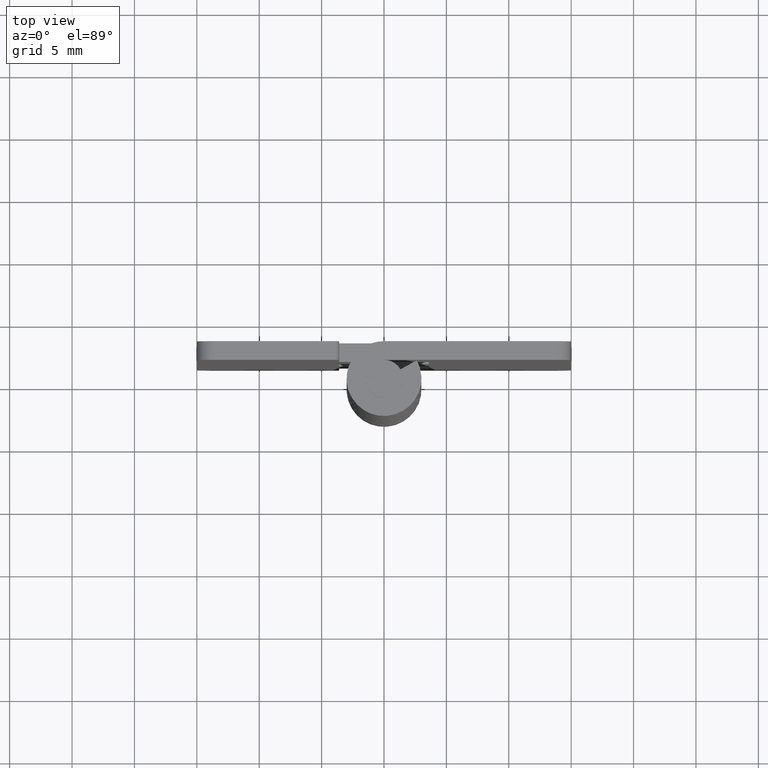
[diagram: clean part render]
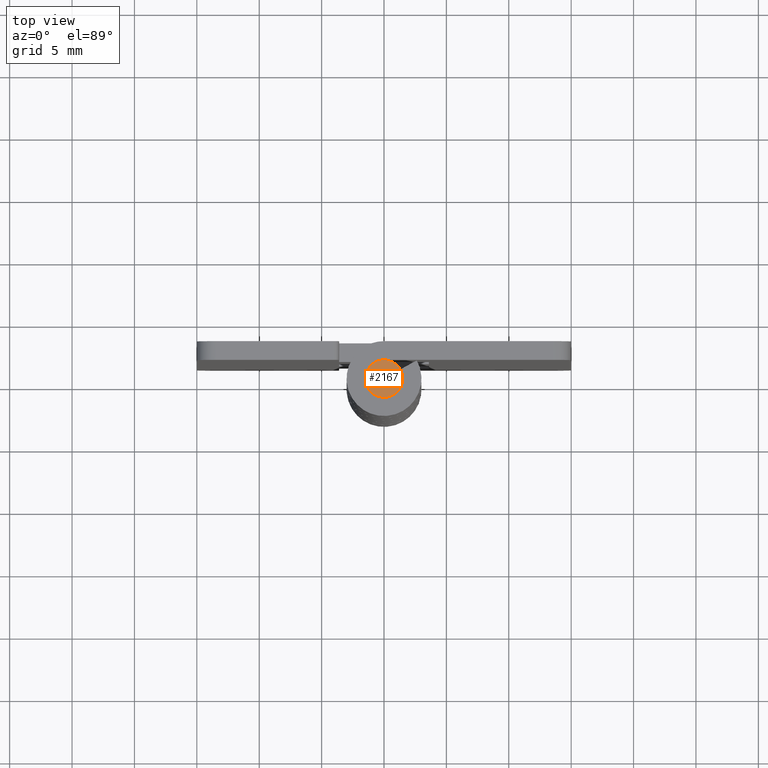
[diagram: same view with one face highlighted and labeled with its STEP entity id]
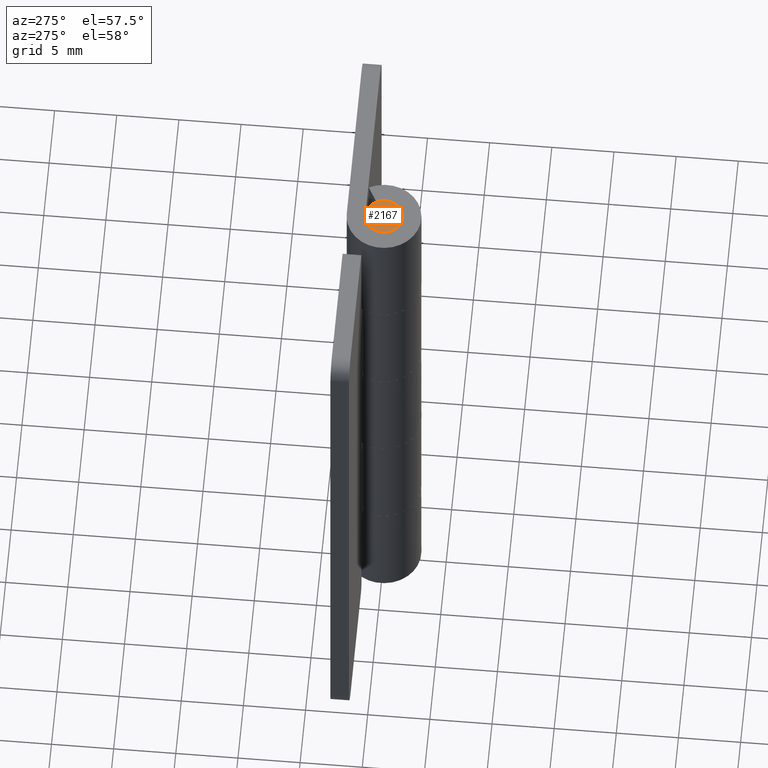
[diagram: same view with one face highlighted and labeled with its STEP entity id]
A machine part, top view. The second image highlights one B-rep face of the part: STEP entity #2167.
A second angle (auxiliary view) of the same face is appended — the face is thin or edge-on in the first view.
In plain terms, the highlighted face is a freeform B-spline surface patch.
Its self-contained STEP definition (entity closure, byte-faithful):
#1999=CARTESIAN_POINT('',(0.177051352095006,-1.489514289532440,50.0));
#2000=VERTEX_POINT('',#1999);
#2006=CARTESIAN_POINT('',(-1.500000000000000,0.0,50.0));
#2007=VERTEX_POINT('',#2006);
#2008=CARTESIAN_POINT('',(0.177051352095006,-1.489514289532440,50.0));
#2009=CARTESIAN_POINT('',(0.088836179588895,-1.500000000000000,50.000000000000007));
#2010=CARTESIAN_POINT('',(0.0,-1.500000000000000,50.0));
#2011=CARTESIAN_POINT('',(-1.500000000000000,-1.500000000000000,50.0));
#2012=CARTESIAN_POINT('',(-1.500000000000000,0.0,50.0));
#2020=(BOUNDED_CURVE()B_SPLINE_CURVE(2,(#2008,#2009,#2010,#2011,#2012),.UNSPECIFIED.,.F.,.U.)B_SPLINE_CURVE_WITH_KNOTS((3,2,3),(0.229562473490712,0.250000000000000,0.500000000000000),.UNSPECIFIED.)CURVE()GEOMETRIC_REPRESENTATION_ITEM()RATIONAL_B_SPLINE_CURVE((0.956026754139018,0.976055948304438,1.0,0.707106781186548,1.0))REPRESENTATION_ITEM(''));
#2021=EDGE_CURVE('',#2000,#2007,#2020,.T.);
#2023=CARTESIAN_POINT('',(-0.091572809453340,1.497202197623561,50.0));
#2024=VERTEX_POINT('',#2023);
#2025=CARTESIAN_POINT('',(-1.500000000000000,0.0,50.0));
#2026=CARTESIAN_POINT('',(-1.500000000000000,1.411059100073276,49.999999999999993));
#2027=CARTESIAN_POINT('',(-0.091572809453340,1.497202197623561,50.0));
#2035=(BOUNDED_CURVE()B_SPLINE_CURVE(2,(#2025,#2026,#2027),.UNSPECIFIED.,.F.,.U.)B_SPLINE_CURVE_WITH_KNOTS((3,3),(0.500000000000000,0.739332962207151),.UNSPECIFIED.)CURVE()GEOMETRIC_REPRESENTATION_ITEM()RATIONAL_B_SPLINE_CURVE((1.0,0.719603993323957,0.976072041598581))REPRESENTATION_ITEM(''));
#2036=EDGE_CURVE('',#2007,#2024,#2035,.T.);
#2110=CARTESIAN_POINT('',(1.500000000000000,0.0,50.0));
#2111=VERTEX_POINT('',#2110);
#2112=CARTESIAN_POINT('',(-0.091572809453340,1.497202197623562,50.0));
#2113=CARTESIAN_POINT('',(-0.045829145099362,1.500000000000000,50.0));
#2114=CARTESIAN_POINT('',(0.0,1.500000000000000,50.0));
#2115=CARTESIAN_POINT('',(1.500000000000000,1.500000000000000,50.0));
#2116=CARTESIAN_POINT('',(1.500000000000000,0.0,50.0));
#2124=(BOUNDED_CURVE()B_SPLINE_CURVE(2,(#2112,#2113,#2114,#2115,#2116),.UNSPECIFIED.,.F.,.U.)B_SPLINE_CURVE_WITH_KNOTS((3,2,3),(0.739332962207151,0.750000000000000,1.0),.UNSPECIFIED.)CURVE()GEOMETRIC_REPRESENTATION_ITEM()RATIONAL_B_SPLINE_CURVE((0.976072041598582,0.987502787862591,1.0,0.707106781186548,1.0))REPRESENTATION_ITEM(''));
#2125=EDGE_CURVE('',#2024,#2111,#2124,.T.);
#2127=CARTESIAN_POINT('',(1.500000000000000,0.0,50.0));
#2128=CARTESIAN_POINT('',(1.500000000000000,-1.332261788729130,49.999999999999993));
#2129=CARTESIAN_POINT('',(0.177051352095006,-1.489514289532440,50.0));
#2137=(BOUNDED_CURVE()B_SPLINE_CURVE(2,(#2127,#2128,#2129),.UNSPECIFIED.,.F.,.U.)B_SPLINE_CURVE_WITH_KNOTS((3,3),(0.0,0.229562473490712),.UNSPECIFIED.)CURVE()GEOMETRIC_REPRESENTATION_ITEM()RATIONAL_B_SPLINE_CURVE((1.0,0.731050832882109,0.956026754139018))REPRESENTATION_ITEM(''));
#2138=EDGE_CURVE('',#2111,#2000,#2137,.T.);
#2156=CARTESIAN_POINT('',(-1.649849994185418,-1.649822796802988,50.0));
#2157=CARTESIAN_POINT('',(1.649850074651688,-1.649822796802988,50.0));
#2158=CARTESIAN_POINT('',(-1.649849994185418,1.649813489537707,50.0));
#2159=CARTESIAN_POINT('',(1.649850074651688,1.649813489537707,50.0));
#2160=B_SPLINE_SURFACE_WITH_KNOTS('',1,1,((#2156,#2158),(#2157,#2159)),.UNSPECIFIED.,.F.,.F.,.U.,(2,2),(2,2),(0.0,3.299700068837106),(0.0,3.299636286340695),.UNSPECIFIED.);
#2161=ORIENTED_EDGE('',*,*,#2125,.F.);
#2162=ORIENTED_EDGE('',*,*,#2036,.F.);
#2163=ORIENTED_EDGE('',*,*,#2021,.F.);
#2164=ORIENTED_EDGE('',*,*,#2138,.F.);
#2165=EDGE_LOOP('',(#2161,#2162,#2163,#2164));
#2166=FACE_OUTER_BOUND('',#2165,.T.);
#2167=ADVANCED_FACE('',(#2166),#2160,.T.);